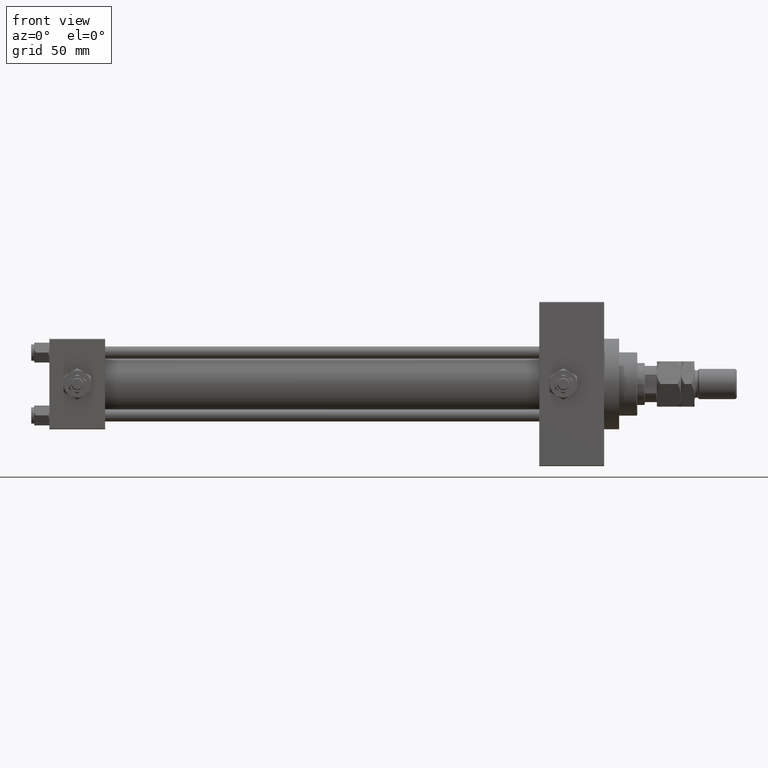
[diagram: clean part render]
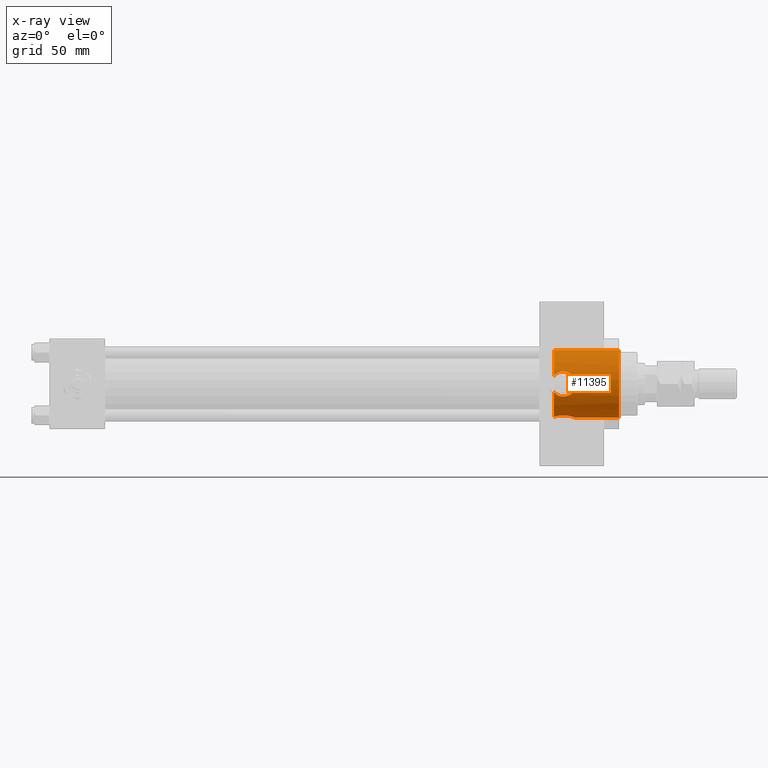
[diagram: x-ray — body ghosted, one internal face saturated and labeled with its STEP entity id]
A machine part, front view, then the same camera in x-ray: the body is ghosted and one INTERNAL B-rep face — a face not visible from any outside direction — is saturated and labeled: STEP entity #11395.
In plain terms, the highlighted cylindrical surface (edge-blend (fillet) strip) has radius 22.5 mm, axis along (1, 0, 0).
Its self-contained STEP definition (entity closure, byte-faithful):
#244 = DIRECTION ( 'NONE',  ( 0.000000000000000000, 0.000000000000000000, -1.000000000000000000 ) ) ;
#518 = CARTESIAN_POINT ( 'NONE',  ( 349.0725935047803432, -2.097577831626844080, -22.40566635581345167 ) ) ;
#602 = EDGE_LOOP ( 'NONE', ( #43256, #9902, #27421, #2357, #20803, #49128, #32354, #13611, #39847 ) ) ;
#1015 = CARTESIAN_POINT ( 'NONE',  ( 347.3413009043435977, -5.417501232309242631, -21.84028767977483909 ) ) ;
#1894 = CARTESIAN_POINT ( 'NONE',  ( 343.9526680260203761, -21.10727557153275313, 7.793937181550339766 ) ) ;
#2276 = CARTESIAN_POINT ( 'NONE',  ( 337.0116854358693672, -7.325101535721532997, -21.27547271216654678 ) ) ;
#2312 = CARTESIAN_POINT ( 'NONE',  ( 377.9999999999999432, 0.000000000000000000, 0.000000000000000000 ) ) ;
#2357 = ORIENTED_EDGE ( 'NONE', *, *, #14857, .F. ) ;
#3467 = CARTESIAN_POINT ( 'NONE',  ( 340.9999999999999432, -20.90122245228732467, -8.330000000000026716 ) ) ;
#3504 = VECTOR ( 'NONE', #40271, 1000.000000000000000 ) ;
#3727 = CARTESIAN_POINT ( 'NONE',  ( 340.4069016165259995, -20.90753896790106481, -8.314203881045560962 ) ) ;
#4713 = CARTESIAN_POINT ( 'NONE',  ( 340.9999999999999432, -20.90122245228732112, 8.330000000000026716 ) ) ;
#4736 = CARTESIAN_POINT ( 'NONE',  ( 346.0823739737876963, -21.50581369923292030, 6.621894569807096786 ) ) ;
#4871 = CARTESIAN_POINT ( 'NONE',  ( 349.1699291769579645, -1.679278209817700374, -22.44115179447787511 ) ) ;
#4962 = CARTESIAN_POINT ( 'NONE',  ( 337.8158094925857995, -21.14073437645954456, 7.702989472338082955 ) ) ;
#4989 = CARTESIAN_POINT ( 'NONE',  ( 344.7029940750481956, -21.22539488743753111, -7.466680409794089535 ) ) ;
#5246 = CARTESIAN_POINT ( 'NONE',  ( 342.1003494092674941, -20.92838892255955940, 8.261561365096227405 ) ) ;
#5499 = CARTESIAN_POINT ( 'NONE',  ( 345.1841016531935225, -21.31459428776614828, -7.208104800680188440 ) ) ;
#5757 = CARTESIAN_POINT ( 'NONE',  ( 349.0457606325066990, -22.39619972498787703, 2.174768506008422975 ) ) ;
#5885 = CIRCLE ( 'NONE', #38709, 22.50000000000000355 ) ;
#6565 = CARTESIAN_POINT ( 'NONE',  ( 337.2800545255193470, -21.22802876403585515, -7.459060741738358757 ) ) ;
#7072 = CARTESIAN_POINT ( 'NONE',  ( 334.7399999999999523, -21.81854028114622324, -5.495570943951128662 ) ) ;
#7339 = CARTESIAN_POINT ( 'NONE',  ( 338.0838949812959982, -21.09704273054902046, -7.825085139990043182 ) ) ;
#7721 = DIRECTION ( 'NONE',  ( 1.000000000000000000, 0.000000000000000000, 0.000000000000000000 ) ) ;
#8216 = CARTESIAN_POINT ( 'NONE',  ( 334.7399999999999523, 0.000000000000000000, 0.000000000000000000 ) ) ;
#8334 = CARTESIAN_POINT ( 'NONE',  ( 337.0214695962670248, -21.27506732941325396, 7.324357775039843865 ) ) ;
#8373 = DIRECTION ( 'NONE',  ( 1.000000000000000000, -0.000000000000000000, -0.000000000000000000 ) ) ;
#8653 = B_SPLINE_CURVE_WITH_KNOTS ( 'NONE', 3,
 ( #24415, #32631, #40104, #4871, #518, #16205, #9251, #47604, #40615, #48344, #1015, #16705, #32888, #44483, #28024, #21063, #36751, #41881, #21573, #48861, #10500, #14371, #44993, #13870, #29530, #37515, #2276, #21318, #41375, #34144, #41625, #45498 ),
 .UNSPECIFIED., .F., .F.,
 ( 4, 2, 2, 2, 2, 2, 2, 2, 2, 2, 2, 2, 2, 2, 2, 4 ),
 ( 0.02026158208243490286, 0.02152696880141145158, 0.02279235552038800378, 0.02405774223936455250, 0.02532312895834110122, 0.02658851567731764995, 0.02785390239629419867, 0.03038467583424730306, 0.03291544927220040051, 0.03354814263168863497, 0.03418083599117686944, 0.03544622271015333836, 0.03671160942912980729, 0.03797699614810627622, 0.03924238286708274515, 0.04050776958605921407 ),
 .UNSPECIFIED. ) ;
#8854 = CARTESIAN_POINT ( 'NONE',  ( 341.5543731579530231, -20.90679372045596907, 8.316058887085103990 ) ) ;
#9112 = CARTESIAN_POINT ( 'NONE',  ( 349.2744378885959691, -22.47926508187073935, -1.105184406068002057 ) ) ;
#9251 = CARTESIAN_POINT ( 'NONE',  ( 348.6639140372365659, -3.290714903397398139, -22.26132373405803477 ) ) ;
#9614 = CARTESIAN_POINT ( 'NONE',  ( 346.5057538670176882, -21.61103907902401744, -6.274735597831412548 ) ) ;
#9871 = CARTESIAN_POINT ( 'NONE',  ( 348.5839448562603025, -22.23438073986798003, 3.456375289581919752 ) ) ;
#9902 = ORIENTED_EDGE ( 'NONE', *, *, #14974, .T. ) ;
#10335 = VERTEX_POINT ( 'NONE', #46191 ) ;
#10500 = CARTESIAN_POINT ( 'NONE',  ( 340.4273342078094515, -8.312974207010759287, -20.90801079915065586 ) ) ;
#10611 = EDGE_CURVE ( 'NONE', #23708, #17313, #36345, .T. ) ;
#10765 = CARTESIAN_POINT ( 'NONE',  ( 334.7399999999999523, -5.495570943951124221, -21.81854028114622324 ) ) ;
#10929 = CARTESIAN_POINT ( 'NONE',  ( 336.5072799748207899, -21.37716939153678197, -7.020813959009437610 ) ) ;
#11395 = ADVANCED_FACE ( 'NONE', ( #35879 ), #47241, .F. ) ;
#12442 = CARTESIAN_POINT ( 'NONE',  ( 335.5602391363178185, -21.59259860989614666, 6.336013317517867449 ) ) ;
#12720 = CARTESIAN_POINT ( 'NONE',  ( 346.5068656785020949, -21.61137517055394497, 6.273349121788506899 ) ) ;
#12978 = CARTESIAN_POINT ( 'NONE',  ( 341.2735061075310909, -20.90122245228731757, -8.330000000000028493 ) ) ;
#13207 = CARTESIAN_POINT ( 'NONE',  ( 338.0904099977523174, -21.10090803564296635, 7.811000428585679778 ) ) ;
#13230 = CARTESIAN_POINT ( 'NONE',  ( 345.1856674176399338, -21.31171765456205591, 7.222201961450741337 ) ) ;
#13485 = CARTESIAN_POINT ( 'NONE',  ( 349.3300812647951261, -22.50003008603270516, -0.5475920828583176192 ) ) ;
#13611 = ORIENTED_EDGE ( 'NONE', *, *, #37675, .T. ) ;
#13732 = CARTESIAN_POINT ( 'NONE',  ( 342.3698902534409285, -20.94433763564106243, -8.221198477384719538 ) ) ;
#13870 = CARTESIAN_POINT ( 'NONE',  ( 338.5613052431536403, -7.976241308370991767, -21.03905286955200538 ) ) ;
#14348 = CARTESIAN_POINT ( 'NONE',  ( 349.3299999999999841, -1.030804544852296126E-23, -22.50000000000000355 ) ) ;
#14371 = CARTESIAN_POINT ( 'NONE',  ( 339.7966742200955537, -8.253438808842137320, -20.93161653585324800 ) ) ;
#14397 = EDGE_CURVE ( 'NONE', #47445, #10335, #34741, .T. ) ;
#14487 = DIRECTION ( 'NONE',  ( 0.000000000000000000, 0.000000000000000000, -1.000000000000000000 ) ) ;
#14857 = EDGE_CURVE ( 'NONE', #30110, #10335, #42893, .T. ) ;
#14974 = EDGE_CURVE ( 'NONE', #42662, #47445, #39269, .T. ) ;
#15048 = CARTESIAN_POINT ( 'NONE',  ( 335.1302032349921092, -21.70658630899342256, -5.940051103694808710 ) ) ;
#15290 = EDGE_CURVE ( 'NONE', #23708, #38755, #32393, .T. ) ;
#16205 = CARTESIAN_POINT ( 'NONE',  ( 348.8195974207912400, -2.901808889280268922, -22.31576175661178496 ) ) ;
#16571 = CARTESIAN_POINT ( 'NONE',  ( 348.7930968072332121, -22.30658703498861684, 2.954723655153332906 ) ) ;
#16622 = CARTESIAN_POINT ( 'NONE',  ( 334.7399999999999523, 2.755455298081545172E-15, 22.50000000000000355 ) ) ;
#16705 = CARTESIAN_POINT ( 'NONE',  ( 346.7709310324998455, -6.021442665975518693, -21.68155238348413505 ) ) ;
#16800 = CARTESIAN_POINT ( 'NONE',  ( 334.7399999999999523, -21.81854028114621968, 5.495570943951130438 ) ) ;
#17073 = CARTESIAN_POINT ( 'NONE',  ( 342.0945140872406682, -20.92807357394549683, -8.262359610693556178 ) ) ;
#17313 = VERTEX_POINT ( 'NONE', #10765 ) ;
#17333 = CARTESIAN_POINT ( 'NONE',  ( 348.4663613352664129, -22.19443338850294367, -3.703568790865940485 ) ) ;
#18595 = DIRECTION ( 'NONE',  ( 1.000000000000000000, 0.000000000000000000, 0.000000000000000000 ) ) ;
#18927 = VERTEX_POINT ( 'NONE', #26798 ) ;
#19229 = CARTESIAN_POINT ( 'NONE',  ( 334.7399999999999523, 0.000000000000000000, -22.50000000000000355 ) ) ;
#20142 = CARTESIAN_POINT ( 'NONE',  ( 377.9999999999999432, 2.755455298081545172E-15, 22.50000000000000355 ) ) ;
#20157 = CARTESIAN_POINT ( 'NONE',  ( 339.8116114218196344, -20.92703331906125896, 8.266041580867405258 ) ) ;
#20401 = CARTESIAN_POINT ( 'NONE',  ( 336.5161894936350677, -21.37532087138411541, 7.026404794290225908 ) ) ;
#20424 = CARTESIAN_POINT ( 'NONE',  ( 344.7100157079871678, -21.22206990084784906, 7.478228700289371922 ) ) ;
#20656 = CARTESIAN_POINT ( 'NONE',  ( 337.2813383015108002, -21.22781254901980574, 7.459669642192426231 ) ) ;
#20803 = ORIENTED_EDGE ( 'NONE', *, *, #38310, .T. ) ;
#21063 = CARTESIAN_POINT ( 'NONE',  ( 343.1626272159215318, -8.088971939222155072, -20.99812971082577562 ) ) ;
#21183 = CARTESIAN_POINT ( 'NONE',  ( 340.9999999999999432, -20.90122245228732467, -8.330000000000026716 ) ) ;
#21318 = CARTESIAN_POINT ( 'NONE',  ( 336.2981393575763036, -6.888851288155037444, -21.42070446004187900 ) ) ;
#21436 = CARTESIAN_POINT ( 'NONE',  ( 348.2094365790031247, -22.10932566242728825, 4.181762714824294846 ) ) ;
#21573 = CARTESIAN_POINT ( 'NONE',  ( 341.0645977083230491, -8.332469890991696104, -20.90023832775081658 ) ) ;
#22242 = CARTESIAN_POINT ( 'NONE',  ( 338.6423281438608797, -21.02576769369942866, -8.011595525461789435 ) ) ;
#23019 = CARTESIAN_POINT ( 'NONE',  ( 339.8141494303989703, -20.93274137745090258, -8.250546060391977576 ) ) ;
#23708 = VERTEX_POINT ( 'NONE', #43163 ) ;
#23807 = CARTESIAN_POINT ( 'NONE',  ( 334.7399999999999523, 0.000000000000000000, 0.000000000000000000 ) ) ;
#24068 = VECTOR ( 'NONE', #49841, 1000.000000000000000 ) ;
#24415 = CARTESIAN_POINT ( 'NONE',  ( 349.3299999999999841, -1.030804544852296126E-23, -22.50000000000000355 ) ) ;
#24505 = VERTEX_POINT ( 'NONE', #34529 ) ;
#24517 = CARTESIAN_POINT ( 'NONE',  ( 338.9433953409138667, -21.00018004101063340, 8.077560274214643954 ) ) ;
#24541 = CARTESIAN_POINT ( 'NONE',  ( 340.9999999999999432, -20.90122245228732112, 8.330000000000026716 ) ) ;
#24797 = CARTESIAN_POINT ( 'NONE',  ( 348.4672601230096234, -22.19473539390111583, 3.701775444982247087 ) ) ;
#25301 = CARTESIAN_POINT ( 'NONE',  ( 347.6186959168767316, -21.92229428948382264, -5.086500752054649688 ) ) ;
#26798 = CARTESIAN_POINT ( 'NONE',  ( 340.9999999999999432, -20.90122245228732112, 8.330000000000026716 ) ) ;
#27328 = AXIS2_PLACEMENT_3D ( 'NONE', #2312, #41914, #45280 ) ;
#27421 = ORIENTED_EDGE ( 'NONE', *, *, #14397, .T. ) ;
#28024 = CARTESIAN_POINT ( 'NONE',  ( 344.7487363894114765, -7.487015359358492717, -21.22021487626639669 ) ) ;
#28117 = CARTESIAN_POINT ( 'NONE',  ( 336.2697604933276807, -21.42856317882727168, 6.862982220796677524 ) ) ;
#28391 = CARTESIAN_POINT ( 'NONE',  ( 341.5471095774288983, -20.90659301079499244, -8.316562903860836187 ) ) ;
#28899 = CARTESIAN_POINT ( 'NONE',  ( 345.4162946174781723, -21.36157403235598196, -7.068107254197775191 ) ) ;
#29146 = CARTESIAN_POINT ( 'NONE',  ( 349.1137670994564246, -22.42078891501158111, 1.905695455502139035 ) ) ;
#29393 = CARTESIAN_POINT ( 'NONE',  ( 348.2086838033528693, -22.10908057845582775, -4.183043294148133917 ) ) ;
#29530 = CARTESIAN_POINT ( 'NONE',  ( 338.1560306839753025, -7.840697625789160519, -21.09036237300174577 ) ) ;
#30110 = VERTEX_POINT ( 'NONE', #14348 ) ;
#32243 = CARTESIAN_POINT ( 'NONE',  ( 347.6131820133792303, -21.92059695852138645, 5.094123725193845154 ) ) ;
#32354 = ORIENTED_EDGE ( 'NONE', *, *, #15290, .T. ) ;
#32393 = B_SPLINE_CURVE_WITH_KNOTS ( 'NONE', 3,
 ( #7072, #15048, #49786, #46177, #10929, #46432, #6565, #7339, #22242, #37930, #23019, #3727, #38698, #3467 ),
 .UNSPECIFIED., .F., .F.,
 ( 4, 2, 2, 2, 2, 2, 4 ),
 ( 0.000000000000000000, 0.001781041944051151406, 0.002671562916076662166, 0.003562083888102173142, 0.005343125832153344280, 0.006233646804179008780, 0.007124167776204675014 ),
 .UNSPECIFIED. ) ;
#32631 = CARTESIAN_POINT ( 'NONE',  ( 349.3300000000000978, -0.4228661663087368572, -22.50000000000001421 ) ) ;
#32757 = CARTESIAN_POINT ( 'NONE',  ( 347.2760300427460152, -21.81999627700183453, -5.504278278704846095 ) ) ;
#32888 = CARTESIAN_POINT ( 'NONE',  ( 346.4597915280917277, -6.305104980880392951, -21.60018777995133021 ) ) ;
#33011 = CARTESIAN_POINT ( 'NONE',  ( 349.0590295962804817, -22.40087039118136758, -2.177107464027083772 ) ) ;
#33265 = CARTESIAN_POINT ( 'NONE',  ( 343.6924408181926083, -21.07232387524589257, 7.887613602273576774 ) ) ;
#34144 = CARTESIAN_POINT ( 'NONE',  ( 335.3158746668532899, -6.103616970294087452, -21.65812902678067431 ) ) ;
#34529 = CARTESIAN_POINT ( 'NONE',  ( 334.7399999999999523, -21.81854028114621968, 5.495570943951130438 ) ) ;
#34741 = CIRCLE ( 'NONE', #27328, 22.50000000000000355 ) ;
#35879 = FACE_OUTER_BOUND ( 'NONE', #602, .T. ) ;
#36114 = CARTESIAN_POINT ( 'NONE',  ( 343.1693074062156370, -21.01188926694717551, 8.047222581461237922 ) ) ;
#36345 = CIRCLE ( 'NONE', #49525, 22.50000000000000355 ) ;
#36362 = CARTESIAN_POINT ( 'NONE',  ( 348.9001442294269850, -22.34355564568057773, -2.697317211183199337 ) ) ;
#36590 = CARTESIAN_POINT ( 'NONE',  ( 335.1294213925111762, -21.70681062894639979, 5.939160507616672469 ) ) ;
#36751 = CARTESIAN_POINT ( 'NONE',  ( 342.3403738839044763, -8.265299052519083034, -20.92696222447260013 ) ) ;
#36853 = CARTESIAN_POINT ( 'NONE',  ( 340.4005171616785788, -20.90122245228732822, 8.330000000000030269 ) ) ;
#36880 = CARTESIAN_POINT ( 'NONE',  ( 348.0690759461941184, -22.06383064093186164, -4.414719317479118388 ) ) ;
#37129 = CARTESIAN_POINT ( 'NONE',  ( 347.2706970584280270, -21.81851527395822288, 5.509885407731403895 ) ) ;
#37515 = CARTESIAN_POINT ( 'NONE',  ( 337.3830852825356033, -7.515492575748689674, -21.20842510955139559 ) ) ;
#37675 = EDGE_CURVE ( 'NONE', #38755, #18927, #47877, .T. ) ;
#37930 = CARTESIAN_POINT ( 'NONE',  ( 339.5159917530594385, -20.95182994654722464, -8.202162177390814435 ) ) ;
#38310 = EDGE_CURVE ( 'NONE', #30110, #17313, #8653, .T. ) ;
#38698 = CARTESIAN_POINT ( 'NONE',  ( 340.7033935767803428, -20.90122245228731401, -8.330000000000023164 ) ) ;
#38709 = AXIS2_PLACEMENT_3D ( 'NONE', #8216, #7721, #244 ) ;
#38755 = VERTEX_POINT ( 'NONE', #39742 ) ;
#39269 = LINE ( 'NONE', #16622, #3504 ) ;
#39742 = CARTESIAN_POINT ( 'NONE',  ( 340.9999999999999432, -20.90122245228732467, -8.330000000000026716 ) ) ;
#39847 = ORIENTED_EDGE ( 'NONE', *, *, #49839, .T. ) ;
#39964 = CARTESIAN_POINT ( 'NONE',  ( 348.0675627765496074, -22.06333762759911465, 4.417272871008655066 ) ) ;
#40104 = CARTESIAN_POINT ( 'NONE',  ( 349.2979863424998257, -0.8432915997223064952, -22.48808859033163188 ) ) ;
#40199 = CARTESIAN_POINT ( 'NONE',  ( 338.6551550182246615, -21.03047559937811428, 7.998696374284316235 ) ) ;
#40223 = CARTESIAN_POINT ( 'NONE',  ( 343.7005757782754358, -21.06910324548278979, -7.898897868879319439 ) ) ;
#40271 = DIRECTION ( 'NONE',  ( 1.000000000000000000, -0.000000000000000000, -0.000000000000000000 ) ) ;
#40478 = CARTESIAN_POINT ( 'NONE',  ( 342.6405019173681126, -20.96042511169567391, 8.180472788441878862 ) ) ;
#40615 = CARTESIAN_POINT ( 'NONE',  ( 348.0799258618781096, -4.408873422199400594, -22.06660649451127654 ) ) ;
#40989 = CARTESIAN_POINT ( 'NONE',  ( 348.5849097978502300, -22.23470781577740496, -3.454383896492974504 ) ) ;
#41121 = CARTESIAN_POINT ( 'NONE',  ( 334.7399999999999523, 2.755455298081545172E-15, 22.50000000000000355 ) ) ;
#41375 = CARTESIAN_POINT ( 'NONE',  ( 335.9550632640746812, -6.641689111475748142, -21.49922460944222280 ) ) ;
#41625 = CARTESIAN_POINT ( 'NONE',  ( 335.0173696454153855, -5.811522461638537251, -21.73895961452387482 ) ) ;
#41881 = CARTESIAN_POINT ( 'NONE',  ( 341.2794540716095639, -8.328024065339581838, -20.90201419577499564 ) ) ;
#41914 = DIRECTION ( 'NONE',  ( 1.000000000000000000, 0.000000000000000000, 0.000000000000000000 ) ) ;
#41995 = CARTESIAN_POINT ( 'NONE',  ( 334.7399999999999523, 0.000000000000000000, 0.000000000000000000 ) ) ;
#42662 = VERTEX_POINT ( 'NONE', #41121 ) ;
#42738 = B_SPLINE_CURVE_WITH_KNOTS ( 'NONE', 3,
 ( #4713, #36853, #20157, #24517, #40199, #13207, #4962, #20656, #8334, #20401, #28117, #12442, #36590, #16800 ),
 .UNSPECIFIED., .F., .F.,
 ( 4, 2, 2, 2, 2, 2, 4 ),
 ( 0.03340145977438384317, 0.03517803722730254018, 0.03606632595376196848, 0.03695461468022139678, 0.03784290340668082508, 0.03873119213314025339, 0.04050776958605924183 ),
 .UNSPECIFIED. ) ;
#42893 = LINE ( 'NONE', #19229, #24068 ) ;
#43163 = CARTESIAN_POINT ( 'NONE',  ( 334.7399999999999523, -21.81854028114622324, -5.495570943951128662 ) ) ;
#43256 = ORIENTED_EDGE ( 'NONE', *, *, #44473, .F. ) ;
#43355 = DIRECTION ( 'NONE',  ( 0.000000000000000000, 0.000000000000000000, -1.000000000000000000 ) ) ;
#44094 = CARTESIAN_POINT ( 'NONE',  ( 346.0889559316784130, -21.50736897996589292, -6.616873940636519791 ) ) ;
#44473 = EDGE_CURVE ( 'NONE', #42662, #24505, #5885, .T. ) ;
#44483 = CARTESIAN_POINT ( 'NONE',  ( 345.4717217021022861, -7.077548616542929771, -21.36464718587222222 ) ) ;
#44606 = CARTESIAN_POINT ( 'NONE',  ( 341.2770915216182743, -20.90122245228731401, 8.330000000000024940 ) ) ;
#44855 = CARTESIAN_POINT ( 'NONE',  ( 344.4549169580585612, -21.18338444856563640, -7.584632363023140478 ) ) ;
#44993 = CARTESIAN_POINT ( 'NONE',  ( 339.3814412075935820, -8.182171164303351674, -20.95982457214782002 ) ) ;
#45112 = CARTESIAN_POINT ( 'NONE',  ( 348.8855645018619498, -22.33915006169611317, 2.698472660097865905 ) ) ;
#45280 = DIRECTION ( 'NONE',  ( 0.000000000000000000, 0.000000000000000000, -1.000000000000000000 ) ) ;
#45498 = CARTESIAN_POINT ( 'NONE',  ( 334.7399999999999523, -5.495570943951124221, -21.81854028114622324 ) ) ;
#46177 = CARTESIAN_POINT ( 'NONE',  ( 336.2630478035204078, -21.43006822195328454, -6.858243691352290838 ) ) ;
#46191 = CARTESIAN_POINT ( 'NONE',  ( 377.9999999999999432, 0.000000000000000000, -22.50000000000000355 ) ) ;
#46432 = CARTESIAN_POINT ( 'NONE',  ( 337.0164830714163031, -21.27597812299412183, -7.321745335051938142 ) ) ;
#47081 = AXIS2_PLACEMENT_3D ( 'NONE', #23807, #8373, #43355 ) ;
#47241 = CYLINDRICAL_SURFACE ( 'NONE', #47081, 22.50000000000000355 ) ;
#47445 = VERTEX_POINT ( 'NONE', #20142 ) ;
#47604 = CARTESIAN_POINT ( 'NONE',  ( 348.2951098973458102, -4.042988316980909325, -22.13706359110741673 ) ) ;
#47877 = B_SPLINE_CURVE_WITH_KNOTS ( 'NONE', 3,
 ( #21183, #12978, #28391, #17073, #13732, #47964, #40223, #44855, #4989, #5499, #28899, #44094, #9614, #32757, #25301, #36880, #29393, #17333, #40989, #36362, #33011, #9112, #13485, #48728, #48972, #29146, #5757, #45112, #16571, #9871, #24797, #21436, #39964, #32243, #37129, #12720, #4736, #13230, #20424, #1894, #33265, #36114, #40478, #5246, #8854, #44606, #24541 ),
 .UNSPECIFIED., .F., .F.,
 ( 4, 2, 2, 2, 2, 2, 2, 2, 2, 2, 2, 2, 2, 2, 2, 2, 2, 2, 2, 2, 2, 1, 2, 4 ),
 ( 0.007124167776204675014, 0.007945333151147714740, 0.008766498526090755333, 0.01040882927597699611, 0.01122999465092011998, 0.01205116002586324037, 0.01369349077574948809, 0.01533582152563573234, 0.01615698690057881109, 0.01697815227552188985, 0.01862048302540811329, 0.02026281377529433672, 0.02190514452518055669, 0.02272630990012367014, 0.02354747527506678012, 0.02436864065000989010, 0.02518980602495300009, 0.02683213677483923046, 0.02847446752472545736, 0.03011679827461168427, 0.03093796364955472486, 0.03175912902449776198, 0.03258029439944080258, 0.03340145977438384317 ),
 .UNSPECIFIED. ) ;
#47964 = CARTESIAN_POINT ( 'NONE',  ( 343.1797018052744193, -21.00767761359997365, -8.058598816431034706 ) ) ;
#48344 = CARTESIAN_POINT ( 'NONE',  ( 347.6031555897930616, -5.095277354536547065, -21.91828998158685593 ) ) ;
#48728 = CARTESIAN_POINT ( 'NONE',  ( 349.3299185521605068, -22.49996984620014828, 0.5500617071476535669 ) ) ;
#48861 = CARTESIAN_POINT ( 'NONE',  ( 340.6388607599009219, -8.324890737869443669, -20.90325837862611635 ) ) ;
#48972 = CARTESIAN_POINT ( 'NONE',  ( 349.2761281519645991, -22.47988508193238388, 1.094792065016551463 ) ) ;
#49128 = ORIENTED_EDGE ( 'NONE', *, *, #10611, .F. ) ;
#49525 = AXIS2_PLACEMENT_3D ( 'NONE', #41995, #18595, #14487 ) ;
#49786 = CARTESIAN_POINT ( 'NONE',  ( 335.5599114470475683, -21.59276950757631752, -6.335268510715420298 ) ) ;
#49839 = EDGE_CURVE ( 'NONE', #18927, #24505, #42738, .T. ) ;
#49841 = DIRECTION ( 'NONE',  ( 1.000000000000000000, -0.000000000000000000, -0.000000000000000000 ) ) ;